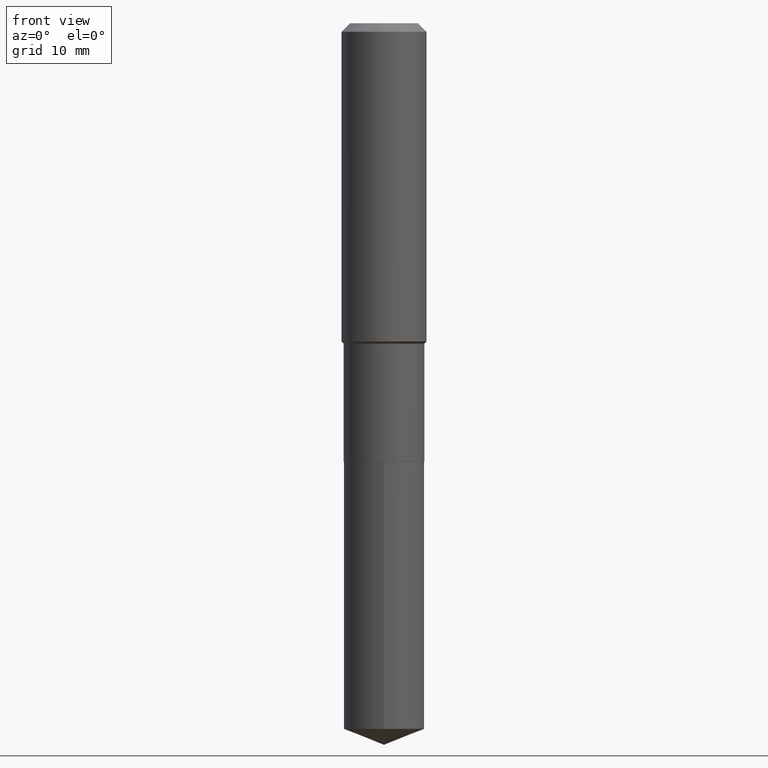
[diagram: clean part render]
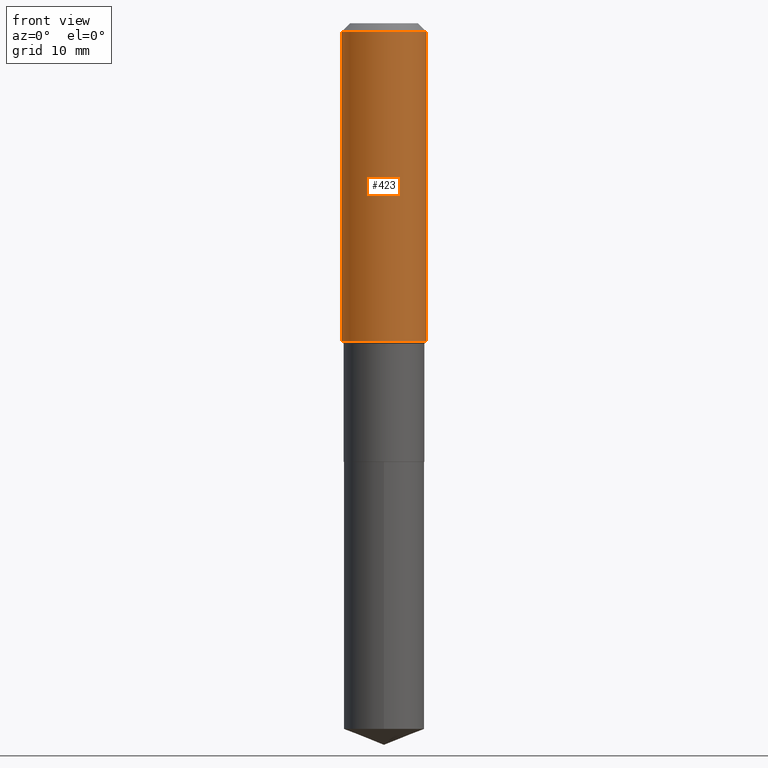
[diagram: same view with one face highlighted and labeled with its STEP entity id]
A machine part, front view. The second image highlights one B-rep face of the part: STEP entity #423.
In plain terms, the highlighted cylindrical surface (partial cylindrical patch) has radius 5.9995 mm, axis along (-0, 0, 1).
Its self-contained STEP definition (entity closure, byte-faithful):
#7 = AXIS2_PLACEMENT_3D ( 'NONE', #69, #61, #33 ) ;
#18 = DIRECTION ( 'NONE',  ( -2.445468806185136597E-29, 3.491481338843145583E-15, 1.000000000000000000 ) ) ;
#33 = DIRECTION ( 'NONE',  ( 1.000000000000000000, -6.982962677686266711E-15, 0.000000000000000000 ) ) ;
#38 = ORIENTED_EDGE ( 'NONE', *, *, #303, .F. ) ;
#48 = DIRECTION ( 'NONE',  ( -2.445468806185136877E-29, 3.491481338843145188E-15, 1.000000000000000000 ) ) ;
#55 = CARTESIAN_POINT ( 'NONE',  ( -0.2361999999999999933, -1.496222721037607866E-15, -0.04724000000000028177 ) ) ;
#61 = DIRECTION ( 'NONE',  ( -2.445468806185136597E-29, 3.491481338843145583E-15, 1.000000000000000000 ) ) ;
#67 = VERTEX_POINT ( 'NONE', #490 ) ;
#69 = CARTESIAN_POINT ( 'NONE',  ( 1.155239464041865506E-30, -1.649375784469511859E-16, -0.04724000000000028177 ) ) ;
#73 = VECTOR ( 'NONE', #181, 39.37007874015748143 ) ;
#85 = CARTESIAN_POINT ( 'NONE',  ( 0.2361999999999999933, -1.814313362916447440E-15, -0.04724000000000028177 ) ) ;
#101 = VERTEX_POINT ( 'NONE', #381 ) ;
#145 = CARTESIAN_POINT ( 'NONE',  ( 0.2362000000000001043, -1.649375784469496920E-15, 1.151752954443000508E-29 ) ) ;
#161 = EDGE_CURVE ( 'NONE', #101, #177, #194, .T. ) ;
#169 = EDGE_CURVE ( 'NONE', #101, #67, #344, .T. ) ;
#171 = CARTESIAN_POINT ( 'NONE',  ( -0.2362000000000001043, 1.678301941865357380E-15, -1.161852468318209317E-29 ) ) ;
#177 = VERTEX_POINT ( 'NONE', #55 ) ;
#181 = DIRECTION ( 'NONE',  ( -2.445468806185136877E-29, 3.491481338843145188E-15, 1.000000000000000000 ) ) ;
#194 = LINE ( 'NONE', #171, #272 ) ;
#215 = DIRECTION ( 'NONE',  ( 1.000000000000000000, -6.982962677686266711E-15, 4.876176775795935793E-29 ) ) ;
#217 = CARTESIAN_POINT ( 'NONE',  ( 0.000000000000000000, 0.000000000000000000, 0.000000000000000000 ) ) ;
#230 = DIRECTION ( 'NONE',  ( 1.000000000000000000, -6.982962677686266711E-15, 0.000000000000000000 ) ) ;
#245 = VERTEX_POINT ( 'NONE', #85 ) ;
#261 = AXIS2_PLACEMENT_3D ( 'NONE', #391, #18, #230 ) ;
#272 = VECTOR ( 'NONE', #48, 39.37007874015748143 ) ;
#276 = CIRCLE ( 'NONE', #7, 0.2361999999999999933 ) ;
#284 = ORIENTED_EDGE ( 'NONE', *, *, #353, .T. ) ;
#287 = FACE_OUTER_BOUND ( 'NONE', #404, .T. ) ;
#290 = LINE ( 'NONE', #145, #73 ) ;
#303 = EDGE_CURVE ( 'NONE', #177, #245, #276, .T. ) ;
#314 = AXIS2_PLACEMENT_3D ( 'NONE', #217, #477, #215 ) ;
#344 = CIRCLE ( 'NONE', #261, 0.2362000000000002153 ) ;
#353 = EDGE_CURVE ( 'NONE', #67, #245, #290, .T. ) ;
#381 = CARTESIAN_POINT ( 'NONE',  ( -0.2362000000000002153, -4.505809805493621606E-15, -1.771199999999999886 ) ) ;
#391 = CARTESIAN_POINT ( 'NONE',  ( 4.331414349515113625E-29, -6.184111747358979578E-15, -1.771199999999999886 ) ) ;
#401 = ORIENTED_EDGE ( 'NONE', *, *, #161, .F. ) ;
#403 = CYLINDRICAL_SURFACE ( 'NONE', #314, 0.2362000000000001043 ) ;
#404 = EDGE_LOOP ( 'NONE', ( #401, #433, #284, #38 ) ) ;
#423 = ADVANCED_FACE ( 'NONE', ( #287 ), #403, .T. ) ;
#433 = ORIENTED_EDGE ( 'NONE', *, *, #169, .T. ) ;
#477 = DIRECTION ( 'NONE',  ( -2.445468806185136597E-29, 3.491481338843145583E-15, 1.000000000000000000 ) ) ;
#490 = CARTESIAN_POINT ( 'NONE',  ( 0.2362000000000002153, -7.833487531828478470E-15, -1.771199999999999886 ) ) ;